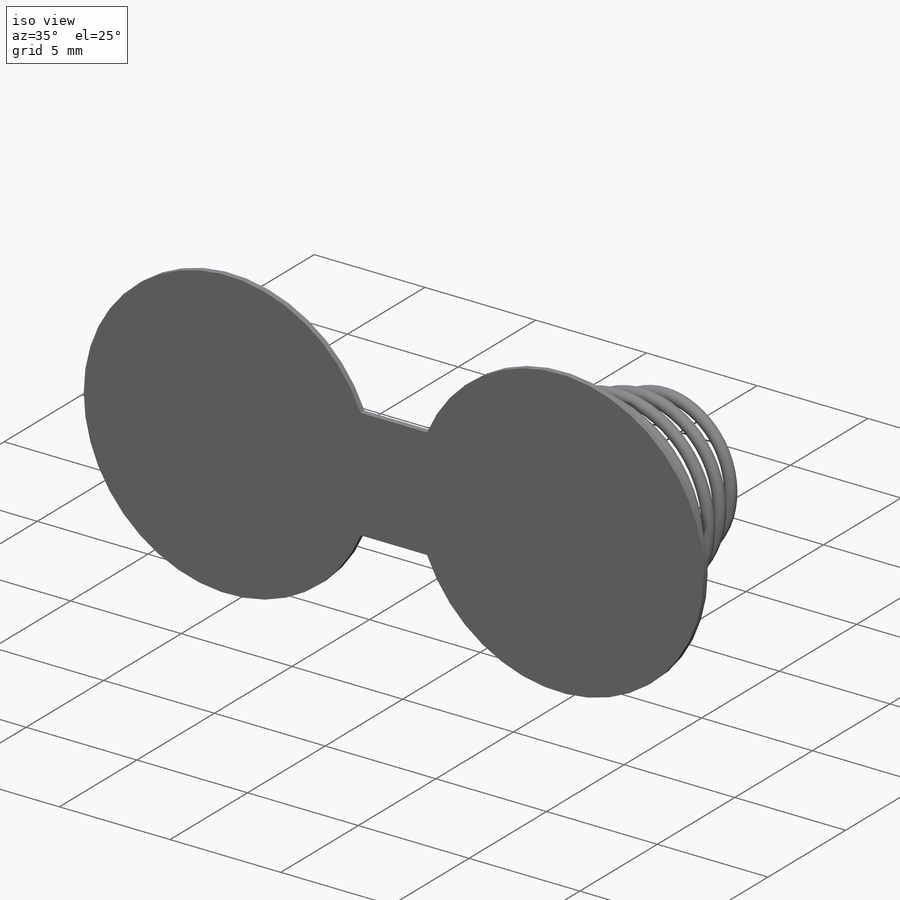
[diagram: iso view]
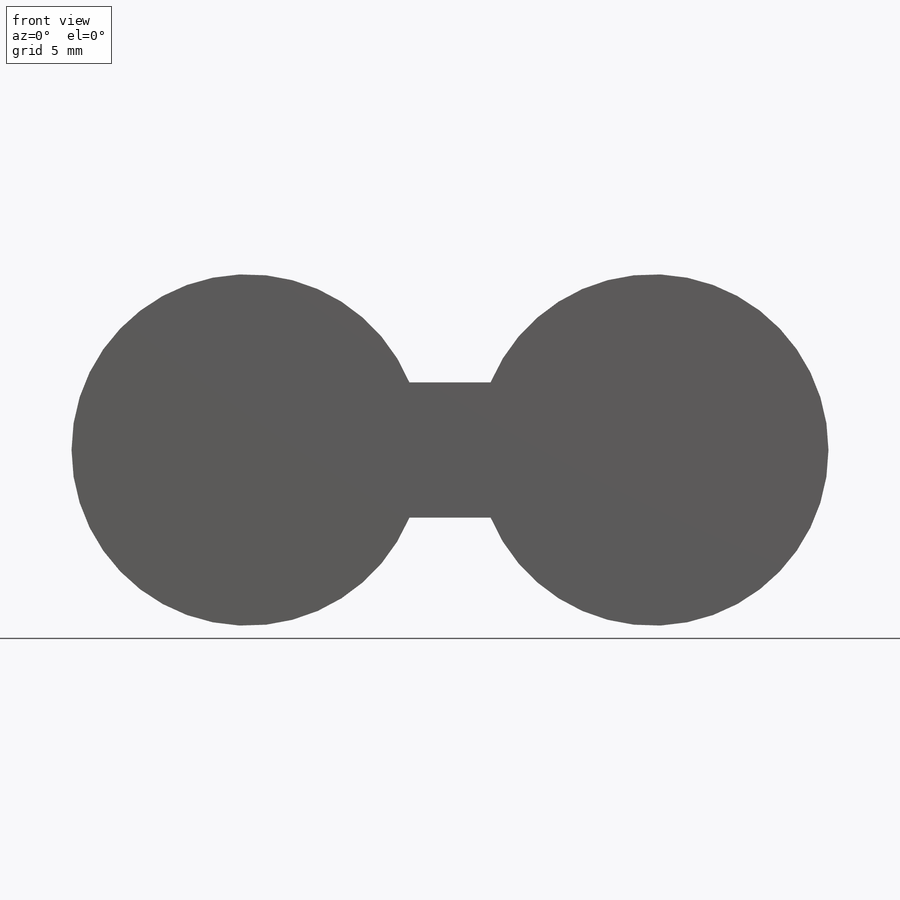
[diagram: front view]
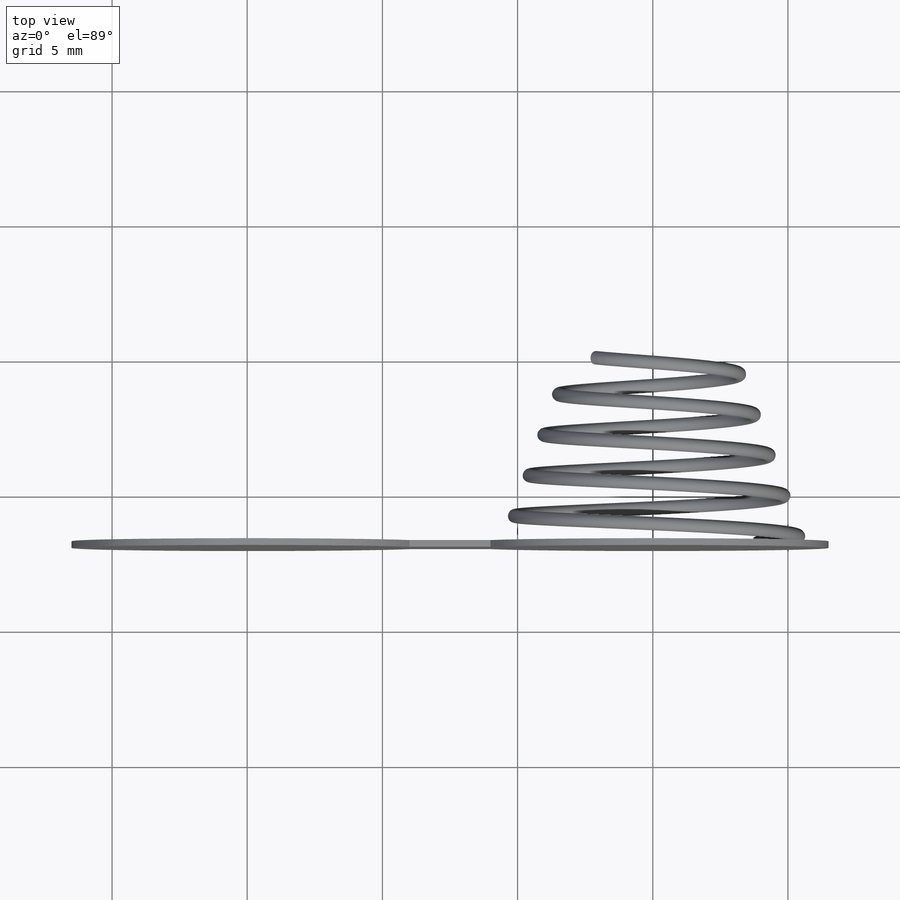
[diagram: top view]
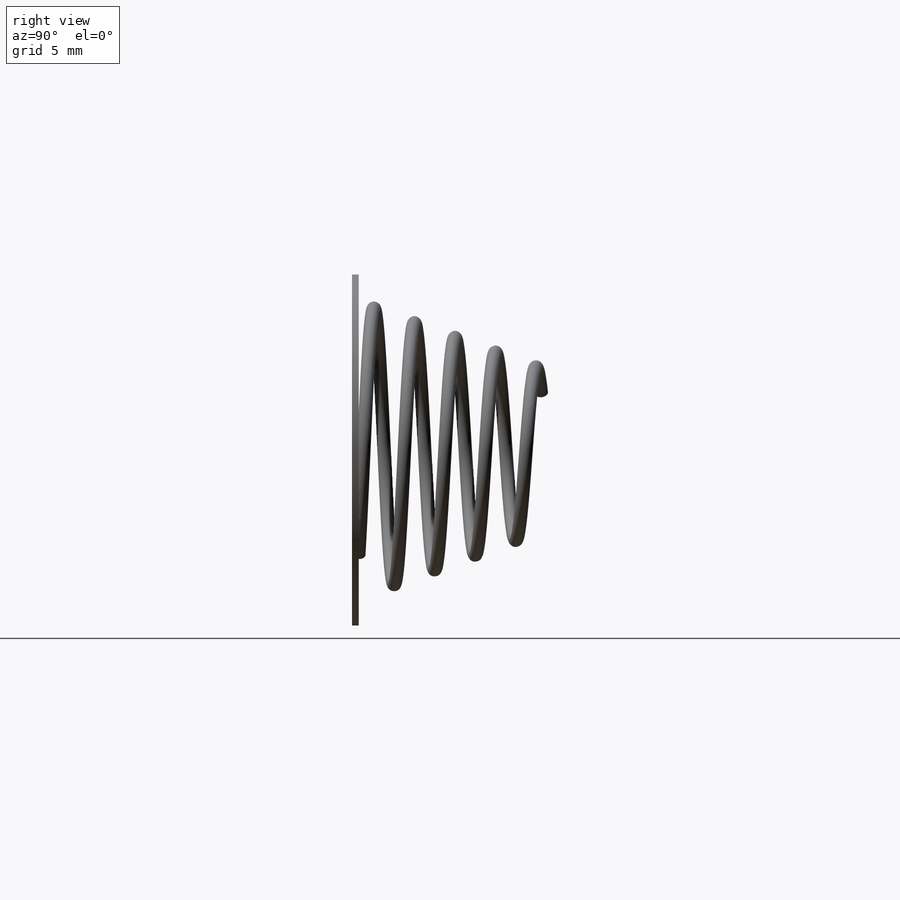
[diagram: right view]
SOLIDWORKS PART (.sldprt)
format: sldprt  version: not decoded by parser v0  size: 714,240 bytes
history: native  units: mm
features: sketch x3, plane x2, material x1, helix x1, sweep x1, extrude x1 (+15 scaffold rows collapsed)
feature tree (24):
  scaffold x15  (default folders/planes/origin — collapsed)
  material  "Material <not specified>"
  sketch  "Sketch1"  dims[D1=6.0mm]
  helix  "Helix/Spiral1"  Pitch=6.75mm
  plane  "Plane1"
  sketch  "Sketch2"  dims[D1=0.5mm]
  sweep  "Sweep1"
  plane  "Plane2"  Offset=7mm
  sketch  "Sketch3"  dims[D1=13.0mm D2=13.0mm D3=15.0mm D4=5.0mm]
  extrude  "Extrude1"  Depth=0.25mm
decode coverage: 5 of 6 modeling features carry decoded parameters
note: suppression state not decoded; provenance and decode notes live in map.json
